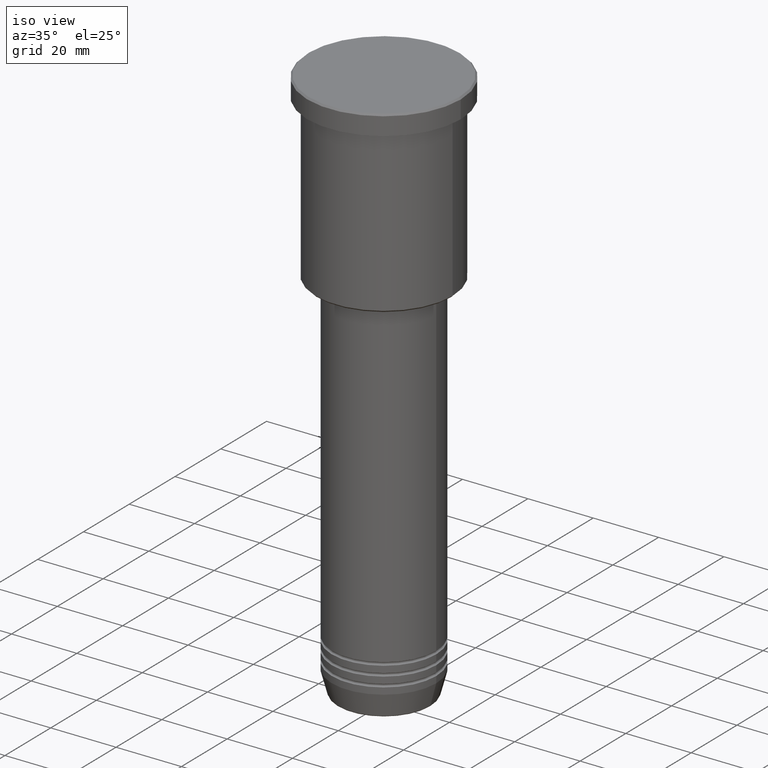
[diagram: clean part render]
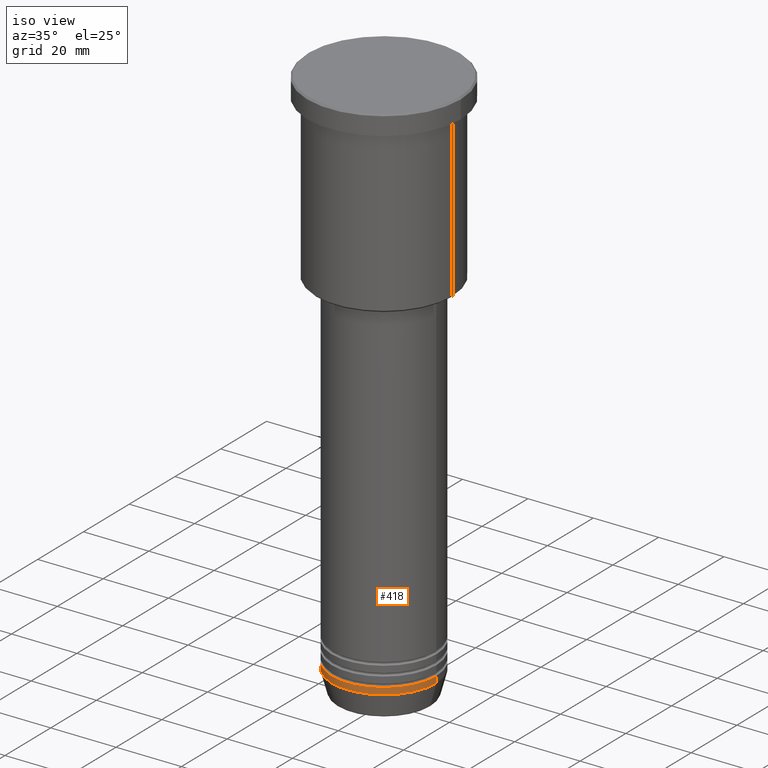
[diagram: same view with one face highlighted and labeled with its STEP entity id]
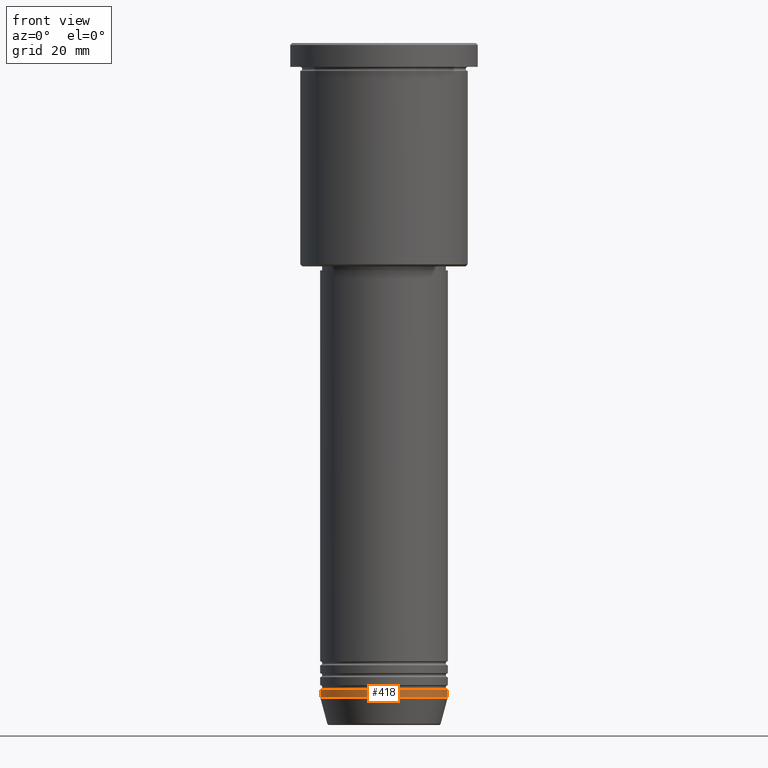
[diagram: same view with one face highlighted and labeled with its STEP entity id]
A machine part, iso view. The second image highlights one B-rep face of the part: STEP entity #418.
A second angle (front view) of the same face is appended — the face is thin or edge-on in the first view.
In plain terms, the highlighted cylindrical surface (partial cylindrical patch) has radius 16 mm, axis along (-0, -0, 1).
Its self-contained STEP definition (entity closure, byte-faithful):
#14 = FACE_OUTER_BOUND ( 'NONE', #565, .T. ) ;
#22 = VERTEX_POINT ( 'NONE', #972 ) ;
#42 = EDGE_CURVE ( 'NONE', #221, #446, #344, .T. ) ;
#43 = ORIENTED_EDGE ( 'NONE', *, *, #92, .T. ) ;
#92 = EDGE_CURVE ( 'NONE', #446, #22, #439, .T. ) ;
#138 = AXIS2_PLACEMENT_3D ( 'NONE', #563, #274, #629 ) ;
#208 = DIRECTION ( 'NONE',  ( -0.000000000000000000, -0.000000000000000000, 1.000000000000000000 ) ) ;
#221 = VERTEX_POINT ( 'NONE', #927 ) ;
#254 = CARTESIAN_POINT ( 'NONE',  ( 0.000000000000000000, 0.000000000000000000, -162.0000000000000000 ) ) ;
#274 = DIRECTION ( 'NONE',  ( -0.000000000000000000, -0.000000000000000000, 1.000000000000000000 ) ) ;
#314 = DIRECTION ( 'NONE',  ( -0.000000000000000000, -0.000000000000000000, 1.000000000000000000 ) ) ;
#344 = CIRCLE ( 'NONE', #507, 16.00000000000000000 ) ;
#373 = VERTEX_POINT ( 'NONE', #916 ) ;
#379 = CYLINDRICAL_SURFACE ( 'NONE', #138, 16.00000000000000000 ) ;
#418 = ADVANCED_FACE ( 'NONE', ( #14 ), #379, .T. ) ;
#439 = LINE ( 'NONE', #807, #558 ) ;
#446 = VERTEX_POINT ( 'NONE', #845 ) ;
#456 = DIRECTION ( 'NONE',  ( -0.000000000000000000, -0.000000000000000000, 1.000000000000000000 ) ) ;
#507 = AXIS2_PLACEMENT_3D ( 'NONE', #548, #456, #825 ) ;
#537 = AXIS2_PLACEMENT_3D ( 'NONE', #254, #609, #980 ) ;
#548 = CARTESIAN_POINT ( 'NONE',  ( 0.000000000000000000, 0.000000000000000000, -164.0000000000000000 ) ) ;
#558 = VECTOR ( 'NONE', #208, 1000.000000000000000 ) ;
#563 = CARTESIAN_POINT ( 'NONE',  ( 0.000000000000000000, 0.000000000000000000, 0.000000000000000000 ) ) ;
#565 = EDGE_LOOP ( 'NONE', ( #969, #1040, #43, #895 ) ) ;
#609 = DIRECTION ( 'NONE',  ( -0.000000000000000000, -0.000000000000000000, 1.000000000000000000 ) ) ;
#621 = LINE ( 'NONE', #1014, #914 ) ;
#629 = DIRECTION ( 'NONE',  ( 1.000000000000000000, 0.000000000000000000, 0.000000000000000000 ) ) ;
#722 = EDGE_CURVE ( 'NONE', #373, #22, #816, .T. ) ;
#807 = CARTESIAN_POINT ( 'NONE',  ( 16.00000000000000000, 0.000000000000000000, 0.000000000000000000 ) ) ;
#816 = CIRCLE ( 'NONE', #537, 16.00000000000000000 ) ;
#825 = DIRECTION ( 'NONE',  ( 1.000000000000000000, 0.000000000000000000, 0.000000000000000000 ) ) ;
#845 = CARTESIAN_POINT ( 'NONE',  ( 16.00000000000000000, 0.000000000000000000, -164.0000000000000000 ) ) ;
#895 = ORIENTED_EDGE ( 'NONE', *, *, #722, .F. ) ;
#914 = VECTOR ( 'NONE', #314, 1000.000000000000000 ) ;
#916 = CARTESIAN_POINT ( 'NONE',  ( -16.00000000000000000, 1.959434878635765131E-15, -162.0000000000000000 ) ) ;
#927 = CARTESIAN_POINT ( 'NONE',  ( -16.00000000000000000, 1.959434878635765131E-15, -164.0000000000000000 ) ) ;
#969 = ORIENTED_EDGE ( 'NONE', *, *, #1174, .F. ) ;
#972 = CARTESIAN_POINT ( 'NONE',  ( 16.00000000000000000, 0.000000000000000000, -162.0000000000000000 ) ) ;
#980 = DIRECTION ( 'NONE',  ( 1.000000000000000000, 0.000000000000000000, 0.000000000000000000 ) ) ;
#1014 = CARTESIAN_POINT ( 'NONE',  ( -16.00000000000000000, 1.959434878635765131E-15, 0.000000000000000000 ) ) ;
#1040 = ORIENTED_EDGE ( 'NONE', *, *, #42, .T. ) ;
#1174 = EDGE_CURVE ( 'NONE', #221, #373, #621, .T. ) ;